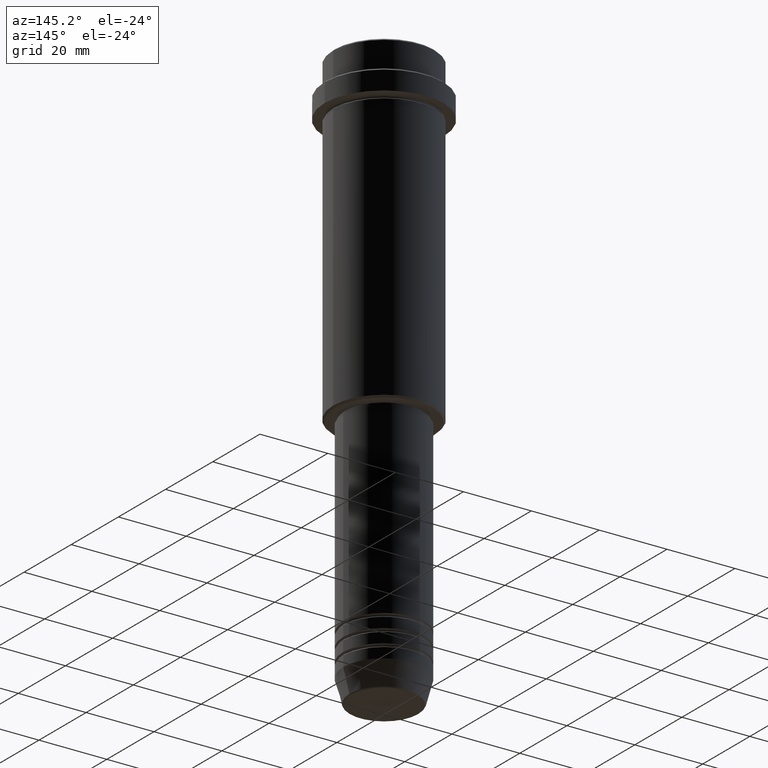
[diagram: clean part render]
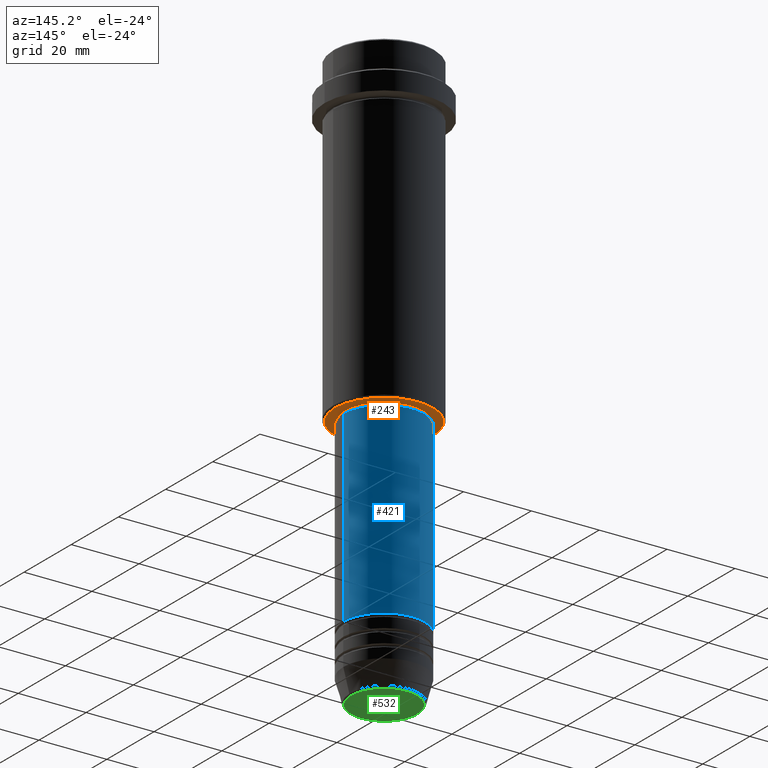
[diagram: same view with three faces highlighted in distinct colors, each labeled with its STEP entity id]
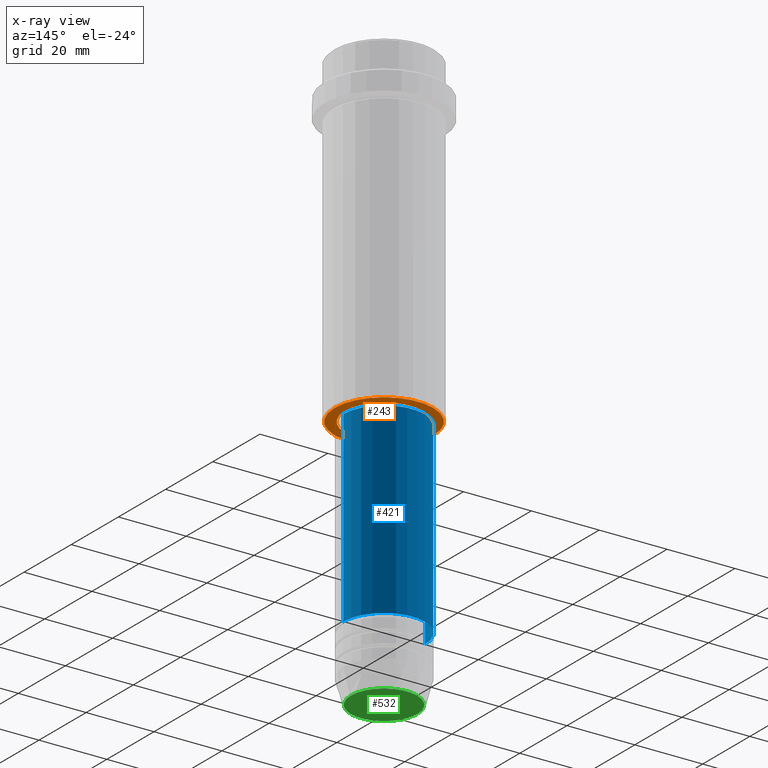
[diagram: x-ray of the same camera — body ghosted, the three highlighted faces saturated]
A machine part, auxiliary view with three faces highlighted in distinct colors.
The next image is the same camera in x-ray (body ghosted, the three faces saturated) — at least one of them is partly hidden behind the body in this view.
Their STEP definitions:

[orange] entity #243 — the highlighted planar face has unit normal (0, 0, -1).
#20 = DIRECTION ( 'NONE',  ( 0.000000000000000000, 0.000000000000000000, -1.000000000000000000 ) ) ;
#38 = DIRECTION ( 'NONE',  ( -1.000000000000000000, 0.000000000000000000, -0.000000000000000000 ) ) ;
#99 = EDGE_LOOP ( 'NONE', ( #156, #647 ) ) ;
#156 = ORIENTED_EDGE ( 'NONE', *, *, #1006, .T. ) ;
#229 = DIRECTION ( 'NONE',  ( -1.000000000000000000, 0.000000000000000000, 0.000000000000000000 ) ) ;
#243 = ADVANCED_FACE ( 'NONE', ( #931, #1364 ), #388, .T. ) ;
#259 = ORIENTED_EDGE ( 'NONE', *, *, #1172, .T. ) ;
#311 = CIRCLE ( 'NONE', #1375, 14.49999999999996980 ) ;
#342 = CARTESIAN_POINT ( 'NONE',  ( 0.000000000000000000, 15.00000000000000000, -95.00000000000000000 ) ) ;
#374 = AXIS2_PLACEMENT_3D ( 'NONE', #979, #869, #1303 ) ;
#388 = PLANE ( 'NONE',  #391 ) ;
#391 = AXIS2_PLACEMENT_3D ( 'NONE', #342, #850, #38 ) ;
#426 = CARTESIAN_POINT ( 'NONE',  ( 0.000000000000000000, 0.000000000000000000, -95.00000000000000000 ) ) ;
#456 = AXIS2_PLACEMENT_3D ( 'NONE', #426, #851, #516 ) ;
#462 = DIRECTION ( 'NONE',  ( -1.000000000000000000, 0.000000000000000000, 0.000000000000000000 ) ) ;
#478 = VERTEX_POINT ( 'NONE', #1379 ) ;
#510 = CIRCLE ( 'NONE', #374, 11.49999999999999467 ) ;
#516 = DIRECTION ( 'NONE',  ( 1.000000000000000000, 0.000000000000000000, 0.000000000000000000 ) ) ;
#561 = CARTESIAN_POINT ( 'NONE',  ( 0.000000000000000000, 0.000000000000000000, -95.00000000000000000 ) ) ;
#626 = ORIENTED_EDGE ( 'NONE', *, *, #1145, .T. ) ;
#647 = ORIENTED_EDGE ( 'NONE', *, *, #903, .T. ) ;
#749 = EDGE_LOOP ( 'NONE', ( #259, #626 ) ) ;
#809 = VERTEX_POINT ( 'NONE', #992 ) ;
#813 = CARTESIAN_POINT ( 'NONE',  ( 14.49999999999996980, 0.000000000000000000, -95.00000000000000000 ) ) ;
#838 = CIRCLE ( 'NONE', #456, 11.49999999999999467 ) ;
#850 = DIRECTION ( 'NONE',  ( 0.000000000000000000, 0.000000000000000000, -1.000000000000000000 ) ) ;
#851 = DIRECTION ( 'NONE',  ( -0.000000000000000000, -0.000000000000000000, 1.000000000000000000 ) ) ;
#869 = DIRECTION ( 'NONE',  ( -0.000000000000000000, -0.000000000000000000, 1.000000000000000000 ) ) ;
#891 = DIRECTION ( 'NONE',  ( 0.000000000000000000, 0.000000000000000000, -1.000000000000000000 ) ) ;
#903 = EDGE_CURVE ( 'NONE', #937, #478, #838, .T. ) ;
#931 = FACE_OUTER_BOUND ( 'NONE', #749, .T. ) ;
#937 = VERTEX_POINT ( 'NONE', #1143 ) ;
#979 = CARTESIAN_POINT ( 'NONE',  ( 0.000000000000000000, 0.000000000000000000, -95.00000000000000000 ) ) ;
#992 = CARTESIAN_POINT ( 'NONE',  ( -14.49999999999996980, 1.806354028742344224E-15, -95.00000000000000000 ) ) ;
#994 = CARTESIAN_POINT ( 'NONE',  ( 0.000000000000000000, 0.000000000000000000, -95.00000000000000000 ) ) ;
#1006 = EDGE_CURVE ( 'NONE', #478, #937, #510, .T. ) ;
#1022 = CIRCLE ( 'NONE', #1196, 14.49999999999996980 ) ;
#1143 = CARTESIAN_POINT ( 'NONE',  ( -11.49999999999999467, 1.408343819019455781E-15, -95.00000000000000000 ) ) ;
#1145 = EDGE_CURVE ( 'NONE', #809, #1381, #311, .T. ) ;
#1172 = EDGE_CURVE ( 'NONE', #1381, #809, #1022, .T. ) ;
#1196 = AXIS2_PLACEMENT_3D ( 'NONE', #561, #20, #462 ) ;
#1303 = DIRECTION ( 'NONE',  ( 1.000000000000000000, 0.000000000000000000, 0.000000000000000000 ) ) ;
#1364 = FACE_BOUND ( 'NONE', #99, .T. ) ;
#1375 = AXIS2_PLACEMENT_3D ( 'NONE', #994, #891, #229 ) ;
#1379 = CARTESIAN_POINT ( 'NONE',  ( 11.49999999999999467, 0.000000000000000000, -95.00000000000000000 ) ) ;
#1381 = VERTEX_POINT ( 'NONE', #813 ) ;

[blue] entity #421 — the highlighted cylindrical surface (partial cylindrical patch) has radius 12 mm, axis along (-0, -0, 1).
#36 = FACE_OUTER_BOUND ( 'NONE', #911, .T. ) ;
#47 = DIRECTION ( 'NONE',  ( 1.000000000000000000, 0.000000000000000000, 0.000000000000000000 ) ) ;
#135 = AXIS2_PLACEMENT_3D ( 'NONE', #610, #1038, #47 ) ;
#136 = CARTESIAN_POINT ( 'NONE',  ( 0.000000000000000000, 0.000000000000000000, 0.000000000000000000 ) ) ;
#223 = CARTESIAN_POINT ( 'NONE',  ( -12.00000000000000000, 1.469576158976823947E-15, -150.9999999999999147 ) ) ;
#228 = EDGE_CURVE ( 'NONE', #726, #1281, #936, .T. ) ;
#245 = DIRECTION ( 'NONE',  ( -0.000000000000000000, -0.000000000000000000, 1.000000000000000000 ) ) ;
#281 = DIRECTION ( 'NONE',  ( 1.000000000000000000, 0.000000000000000000, 0.000000000000000000 ) ) ;
#289 = VECTOR ( 'NONE', #691, 1000.000000000000000 ) ;
#324 = CIRCLE ( 'NONE', #135, 11.99999999999999822 ) ;
#361 = DIRECTION ( 'NONE',  ( -0.000000000000000000, -0.000000000000000000, 1.000000000000000000 ) ) ;
#396 = EDGE_CURVE ( 'NONE', #1281, #805, #1346, .T. ) ;
#421 = ADVANCED_FACE ( 'NONE', ( #36 ), #1099, .T. ) ;
#459 = CARTESIAN_POINT ( 'NONE',  ( -11.99999999999999822, 1.469576158976823750E-15, -96.00000000000000000 ) ) ;
#471 = CARTESIAN_POINT ( 'NONE',  ( 12.00000000000000000, 0.000000000000000000, 0.000000000000000000 ) ) ;
#544 = CARTESIAN_POINT ( 'NONE',  ( 11.99999999999999822, 0.000000000000000000, -96.00000000000000000 ) ) ;
#610 = CARTESIAN_POINT ( 'NONE',  ( 0.000000000000000000, 0.000000000000000000, -96.00000000000000000 ) ) ;
#691 = DIRECTION ( 'NONE',  ( -0.000000000000000000, -0.000000000000000000, 1.000000000000000000 ) ) ;
#706 = AXIS2_PLACEMENT_3D ( 'NONE', #1224, #1130, #281 ) ;
#726 = VERTEX_POINT ( 'NONE', #1032 ) ;
#727 = EDGE_CURVE ( 'NONE', #997, #805, #324, .T. ) ;
#730 = ORIENTED_EDGE ( 'NONE', *, *, #228, .T. ) ;
#768 = CARTESIAN_POINT ( 'NONE',  ( -12.00000000000000000, 1.469576158976823947E-15, 0.000000000000000000 ) ) ;
#798 = AXIS2_PLACEMENT_3D ( 'NONE', #136, #361, #920 ) ;
#805 = VERTEX_POINT ( 'NONE', #459 ) ;
#911 = EDGE_LOOP ( 'NONE', ( #730, #1323, #1068, #977 ) ) ;
#920 = DIRECTION ( 'NONE',  ( 1.000000000000000000, 0.000000000000000000, 0.000000000000000000 ) ) ;
#936 = CIRCLE ( 'NONE', #706, 12.00000000000000000 ) ;
#977 = ORIENTED_EDGE ( 'NONE', *, *, #1036, .F. ) ;
#997 = VERTEX_POINT ( 'NONE', #544 ) ;
#1032 = CARTESIAN_POINT ( 'NONE',  ( 12.00000000000000000, 0.000000000000000000, -150.9999999999999147 ) ) ;
#1036 = EDGE_CURVE ( 'NONE', #726, #997, #1050, .T. ) ;
#1038 = DIRECTION ( 'NONE',  ( -0.000000000000000000, -0.000000000000000000, 1.000000000000000000 ) ) ;
#1050 = LINE ( 'NONE', #471, #289 ) ;
#1068 = ORIENTED_EDGE ( 'NONE', *, *, #727, .F. ) ;
#1099 = CYLINDRICAL_SURFACE ( 'NONE', #798, 12.00000000000000000 ) ;
#1130 = DIRECTION ( 'NONE',  ( -0.000000000000000000, -0.000000000000000000, 1.000000000000000000 ) ) ;
#1224 = CARTESIAN_POINT ( 'NONE',  ( 0.000000000000000000, 0.000000000000000000, -150.9999999999999147 ) ) ;
#1281 = VERTEX_POINT ( 'NONE', #223 ) ;
#1323 = ORIENTED_EDGE ( 'NONE', *, *, #396, .T. ) ;
#1346 = LINE ( 'NONE', #768, #1393 ) ;
#1393 = VECTOR ( 'NONE', #245, 1000.000000000000000 ) ;

[green] entity #532 — the highlighted planar face has unit normal (0, -0, 1).
#69 = DIRECTION ( 'NONE',  ( 1.000000000000000000, 0.000000000000000000, 0.000000000000000000 ) ) ;
#73 = EDGE_CURVE ( 'NONE', #935, #328, #1215, .T. ) ;
#103 = EDGE_CURVE ( 'NONE', #328, #935, #523, .T. ) ;
#211 = AXIS2_PLACEMENT_3D ( 'NONE', #1404, #222, #1359 ) ;
#222 = DIRECTION ( 'NONE',  ( 0.000000000000000000, -0.000000000000000000, 1.000000000000000000 ) ) ;
#272 = CARTESIAN_POINT ( 'NONE',  ( 0.000000000000000000, 0.000000000000000000, -169.9999999999999716 ) ) ;
#313 = ORIENTED_EDGE ( 'NONE', *, *, #73, .T. ) ;
#328 = VERTEX_POINT ( 'NONE', #1409 ) ;
#379 = DIRECTION ( 'NONE',  ( 0.000000000000000000, 0.000000000000000000, -1.000000000000000000 ) ) ;
#523 = CIRCLE ( 'NONE', #633, 9.740692158992667160 ) ;
#532 = ADVANCED_FACE ( 'NONE', ( #650 ), #985, .F. ) ;
#603 = ORIENTED_EDGE ( 'NONE', *, *, #103, .T. ) ;
#633 = AXIS2_PLACEMENT_3D ( 'NONE', #272, #379, #69 ) ;
#650 = FACE_OUTER_BOUND ( 'NONE', #1255, .T. ) ;
#703 = DIRECTION ( 'NONE',  ( 1.000000000000000000, 0.000000000000000000, 0.000000000000000000 ) ) ;
#725 = CARTESIAN_POINT ( 'NONE',  ( -9.740692158992667160, 1.222463696683475393E-15, -169.9999999999999716 ) ) ;
#728 = CARTESIAN_POINT ( 'NONE',  ( 0.000000000000000000, 0.000000000000000000, -169.9999999999999716 ) ) ;
#935 = VERTEX_POINT ( 'NONE', #725 ) ;
#985 = PLANE ( 'NONE',  #211 ) ;
#1215 = CIRCLE ( 'NONE', #1243, 9.740692158992667160 ) ;
#1243 = AXIS2_PLACEMENT_3D ( 'NONE', #728, #1261, #703 ) ;
#1255 = EDGE_LOOP ( 'NONE', ( #603, #313 ) ) ;
#1261 = DIRECTION ( 'NONE',  ( 0.000000000000000000, 0.000000000000000000, -1.000000000000000000 ) ) ;
#1359 = DIRECTION ( 'NONE',  ( 1.000000000000000000, 0.000000000000000000, 0.000000000000000000 ) ) ;
#1404 = CARTESIAN_POINT ( 'NONE',  ( 0.000000000000000000, 0.000000000000000000, -169.9999999999999716 ) ) ;
#1409 = CARTESIAN_POINT ( 'NONE',  ( 9.740692158992667160, 0.000000000000000000, -169.9999999999999716 ) ) ;